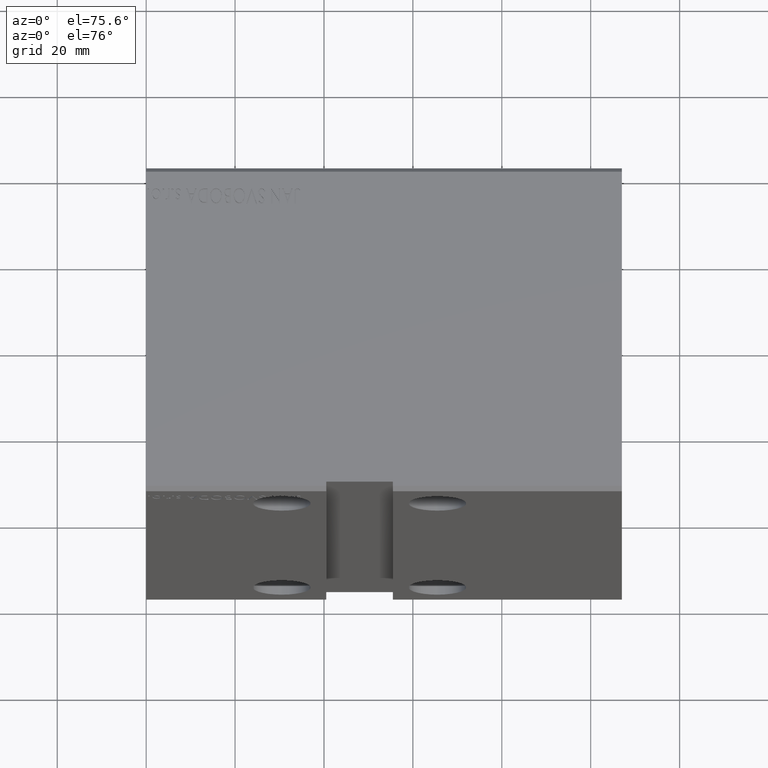
[diagram: clean part render]
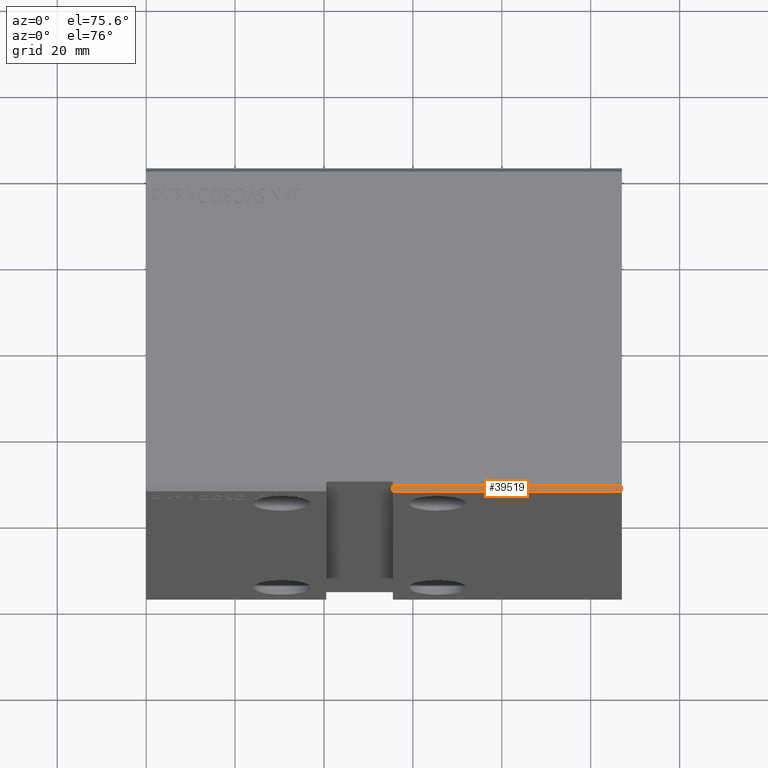
[diagram: same view with one face highlighted and labeled with its STEP entity id]
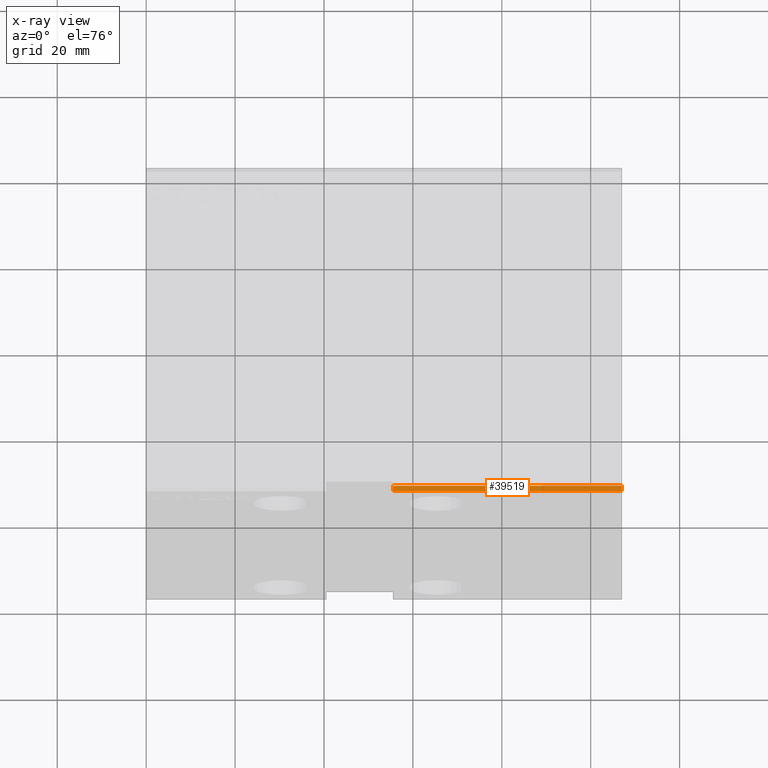
[diagram: x-ray of the same camera — body ghosted, the highlighted face saturated]
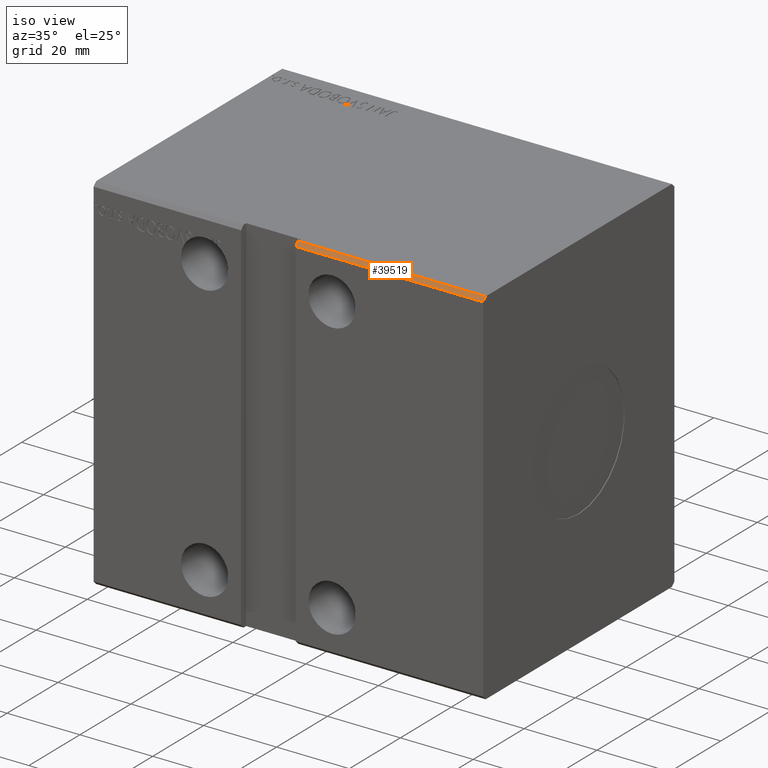
[diagram: same view with one face highlighted and labeled with its STEP entity id]
A machine part, auxiliary view. The second image highlights one B-rep face of the part: STEP entity #39519.
The next image is the same camera in x-ray: the body ghosted, the highlighted face saturated — about 0% of this face is hidden behind the body in this view.
A second angle (iso view) of the same face is appended — the face is thin or edge-on in the first view.
In plain terms, the highlighted planar face has unit normal (0, 0.7071, -0.7071).
Its self-contained STEP definition (entity closure, byte-faithful):
#3532 = LINE ( 'NONE', #16785, #20891 ) ;
#4944 = CARTESIAN_POINT ( 'NONE',  ( 107.0000000000000000, -36.50000000000001421, 49.99999999999998579 ) ) ;
#5325 = EDGE_CURVE ( 'NONE', #20011, #16469, #36818, .T. ) ;
#5463 = EDGE_CURVE ( 'NONE', #13145, #35491, #29740, .T. ) ;
#6211 = EDGE_CURVE ( 'NONE', #16469, #35491, #3532, .T. ) ;
#7079 = CARTESIAN_POINT ( 'NONE',  ( 55.50000000000000000, -37.50000000000001421, 48.99999999999998579 ) ) ;
#7333 = EDGE_CURVE ( 'NONE', #20011, #13145, #20915, .T. ) ;
#7655 = AXIS2_PLACEMENT_3D ( 'NONE', #27225, #10670, #30150 ) ;
#7873 = DIRECTION ( 'NONE',  ( 0.000000000000000000, -0.7071067811865474617, -0.7071067811865474617 ) ) ;
#10670 = DIRECTION ( 'NONE',  ( 0.000000000000000000, 0.7071067811865475727, -0.7071067811865475727 ) ) ;
#13145 = VERTEX_POINT ( 'NONE', #25288 ) ;
#14891 = VECTOR ( 'NONE', #35349, 1000.000000000000000 ) ;
#16116 = ORIENTED_EDGE ( 'NONE', *, *, #6211, .T. ) ;
#16469 = VERTEX_POINT ( 'NONE', #25602 ) ;
#16785 = CARTESIAN_POINT ( 'NONE',  ( 55.50000000000000000, -36.50000000000002132, 49.99999999999997868 ) ) ;
#16875 = VECTOR ( 'NONE', #39923, 1000.000000000000000 ) ;
#16992 = DIRECTION ( 'NONE',  ( 1.471961680016039666E-16, -0.7071067811865474617, -0.7071067811865474617 ) ) ;
#17200 = CARTESIAN_POINT ( 'NONE',  ( 107.0000000000000000, -36.50000000000001421, 49.99999999999998579 ) ) ;
#17292 = PLANE ( 'NONE',  #7655 ) ;
#19770 = CARTESIAN_POINT ( 'NONE',  ( 107.0000000000000000, -37.50000000000001421, 48.99999999999998579 ) ) ;
#20011 = VERTEX_POINT ( 'NONE', #4944 ) ;
#20891 = VECTOR ( 'NONE', #16992, 1000.000000000000114 ) ;
#20915 = LINE ( 'NONE', #17200, #39459 ) ;
#21075 = EDGE_LOOP ( 'NONE', ( #26108, #16116, #35546, #36820 ) ) ;
#25288 = CARTESIAN_POINT ( 'NONE',  ( 107.0000000000000000, -37.50000000000001421, 48.99999999999998579 ) ) ;
#25602 = CARTESIAN_POINT ( 'NONE',  ( 55.50000000000000000, -36.50000000000001421, 49.99999999999998579 ) ) ;
#26108 = ORIENTED_EDGE ( 'NONE', *, *, #5325, .T. ) ;
#27225 = CARTESIAN_POINT ( 'NONE',  ( 107.0000000000000000, -36.50000000000001421, 49.99999999999998579 ) ) ;
#29740 = LINE ( 'NONE', #19770, #14891 ) ;
#30150 = DIRECTION ( 'NONE',  ( 0.000000000000000000, 0.7071067811865474617, 0.7071067811865474617 ) ) ;
#30547 = FACE_OUTER_BOUND ( 'NONE', #21075, .T. ) ;
#31005 = CARTESIAN_POINT ( 'NONE',  ( 107.0000000000000000, -36.50000000000001421, 49.99999999999998579 ) ) ;
#35349 = DIRECTION ( 'NONE',  ( -1.000000000000000000, -0.000000000000000000, -0.000000000000000000 ) ) ;
#35491 = VERTEX_POINT ( 'NONE', #7079 ) ;
#35546 = ORIENTED_EDGE ( 'NONE', *, *, #5463, .F. ) ;
#36818 = LINE ( 'NONE', #31005, #16875 ) ;
#36820 = ORIENTED_EDGE ( 'NONE', *, *, #7333, .F. ) ;
#39459 = VECTOR ( 'NONE', #7873, 1000.000000000000114 ) ;
#39519 = ADVANCED_FACE ( 'NONE', ( #30547 ), #17292, .F. ) ;
#39923 = DIRECTION ( 'NONE',  ( -1.000000000000000000, -0.000000000000000000, -0.000000000000000000 ) ) ;